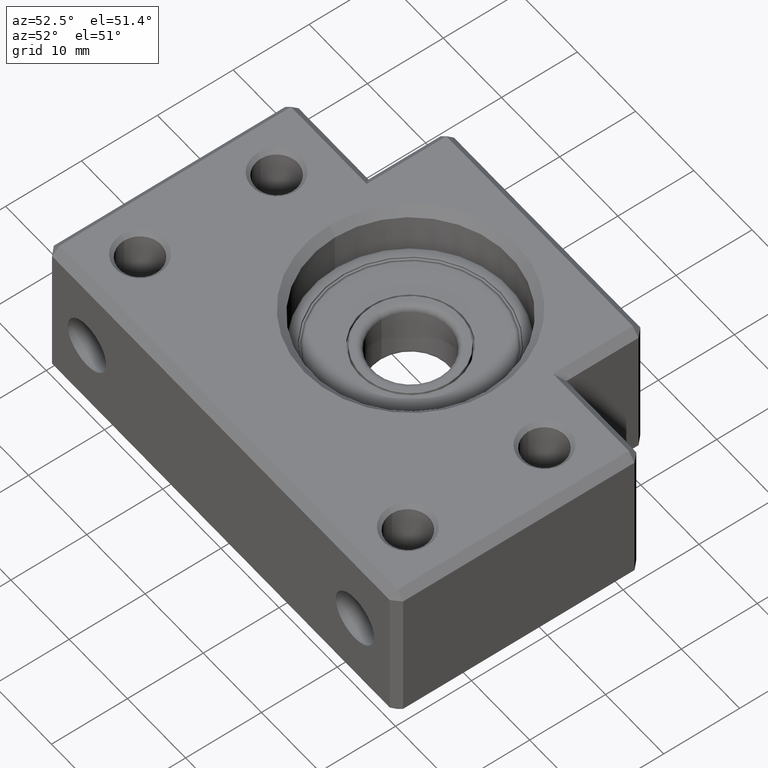
[diagram: clean part render]
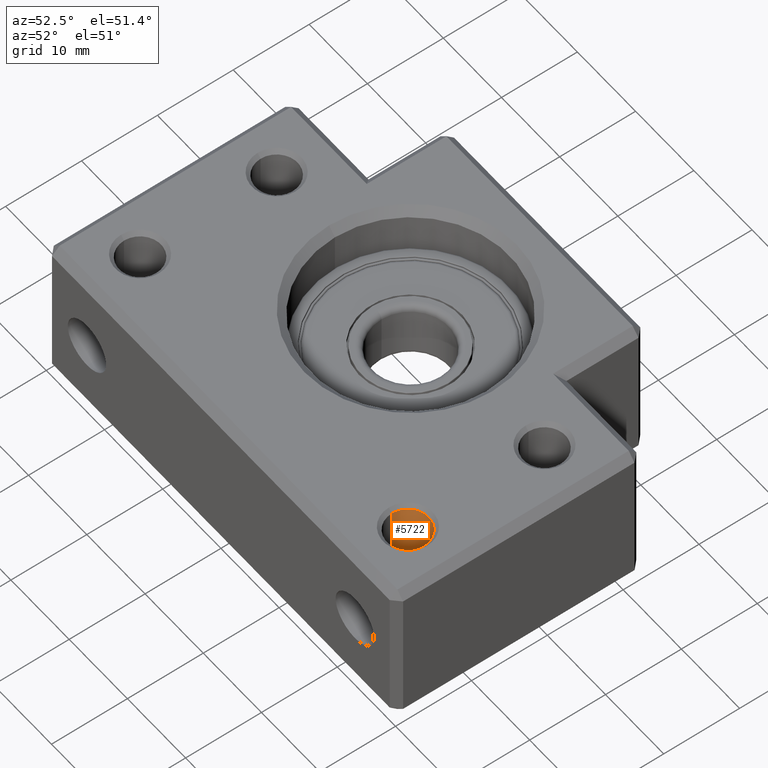
[diagram: same view with one face highlighted and labeled with its STEP entity id]
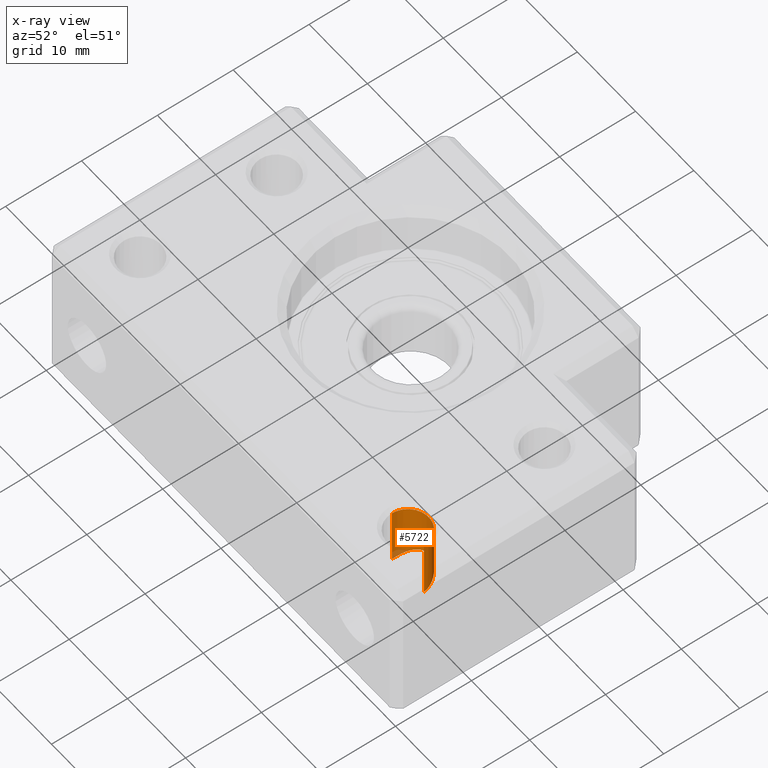
[diagram: x-ray of the same camera — body ghosted, the highlighted face saturated]
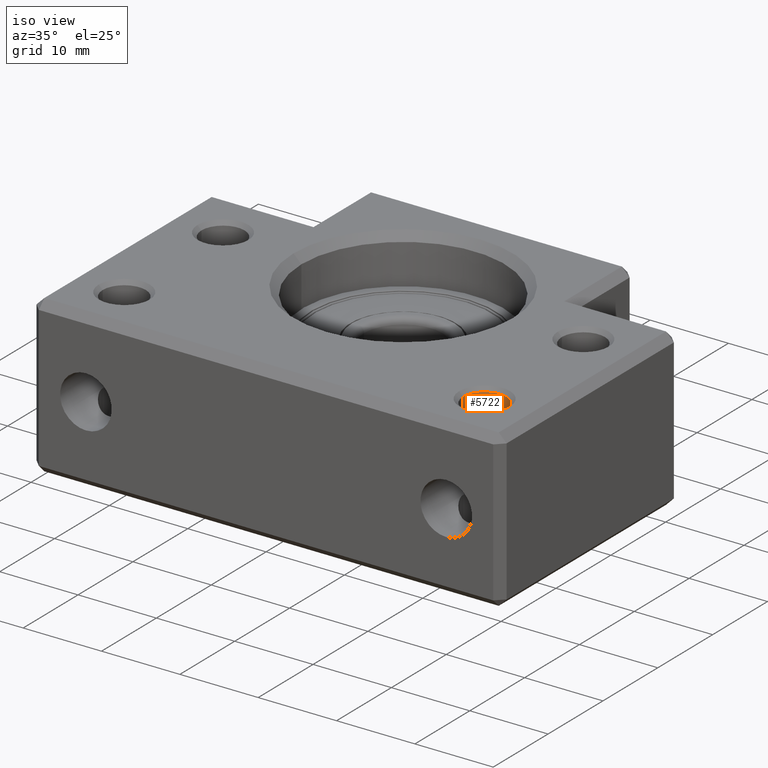
[diagram: same view with one face highlighted and labeled with its STEP entity id]
A machine part, auxiliary view. The second image highlights one B-rep face of the part: STEP entity #5722.
The next image is the same camera in x-ray: the body ghosted, the highlighted face saturated — about 4% of this face is hidden behind the body in this view.
A second angle (iso view) of the same face is appended — the face is thin or edge-on in the first view.
In plain terms, the highlighted cylindrical surface (edge-blend (fillet) strip) has radius 2.75 mm, axis along (-0, -0, 1).
Its self-contained STEP definition (entity closure, byte-faithful):
#779 = VERTEX_POINT ( 'NONE', #2360 ) ;
#780 = VERTEX_POINT ( 'NONE', #2359 ) ;
#2359 = CARTESIAN_POINT ( 'NONE',  ( 25.75000000000000400, 7.000000000000000900, 9.500000000000014200 ) ) ;
#2360 = CARTESIAN_POINT ( 'NONE',  ( 20.25000000000001800, 7.000000000000000900, 9.500000000000014200 ) ) ;
#2779 = CARTESIAN_POINT ( 'NONE',  ( 20.25000000000001800, 7.000000000000000900, 1.824143634695488200 ) ) ;
#2781 = B_SPLINE_CURVE_WITH_KNOTS ( 'NONE', 3,
 ( #2779, #2829, #2828, #2827, #2826, #2825, #2824, #2823, #2822, #2821, #2820, #2819, #2818, #2817, #2816, #2815, #2814, #2813 ),
 .UNSPECIFIED., .F., .F.,
 ( 4, 2, 2, 2, 2, 2, 2, 2, 4 ),
 ( 0.009199788583540854900, 0.009487680565759507000, 0.009775572547978160800, 0.01035135651241546700, 0.01092714047685277300, 0.01150292444129007900, 0.01265449237016469400, 0.01323027633460200300, 0.01380606029903931300 ),
 .UNSPECIFIED. ) ;
#2803 = CARTESIAN_POINT ( 'NONE',  ( 20.25000000000001800, 7.000000000000000900, 1.824143634695488200 ) ) ;
#2809 = CARTESIAN_POINT ( 'NONE',  ( 23.00000000000000400, 9.749999999999991100, 3.299999999999993600 ) ) ;
#2813 = CARTESIAN_POINT ( 'NONE',  ( 23.00000000000000400, 9.749999999999991100, 3.299999999999993600 ) ) ;
#2814 = CARTESIAN_POINT ( 'NONE',  ( 22.80838595597472500, 9.749999999999989300, 3.299999999999992300 ) ) ;
#2815 = CARTESIAN_POINT ( 'NONE',  ( 22.61421564508696100, 9.729430941887889300, 3.282803907253448300 ) ) ;
#2816 = CARTESIAN_POINT ( 'NONE',  ( 22.24240010694564500, 9.650408503811196000, 3.217401663457362600 ) ) ;
#2817 = CARTESIAN_POINT ( 'NONE',  ( 22.06534311916907500, 9.592878818233289800, 3.169957448176050200 ) ) ;
#2818 = CARTESIAN_POINT ( 'NONE',  ( 21.55791167329098500, 9.370505739642833700, 2.989855530037428500 ) ) ;
#2819 = CARTESIAN_POINT ( 'NONE',  ( 21.27520966331518800, 9.169225438651841000, 2.829227714854536800 ) ) ;
#2820 = CARTESIAN_POINT ( 'NONE',  ( 20.91483307837666300, 8.801128559062824800, 2.562115668929378500 ) ) ;
#2821 = CARTESIAN_POINT ( 'NONE',  ( 20.80826711659098600, 8.669511826136734100, 2.470470425103062700 ) ) ;
#2822 = CARTESIAN_POINT ( 'NONE',  ( 20.62062625615063300, 8.389080039777068600, 2.290305163205452300 ) ) ;
#2823 = CARTESIAN_POINT ( 'NONE',  ( 20.53917178795052200, 8.240029006053784900, 2.201324509957096600 ) ) ;
#2824 = CARTESIAN_POINT ( 'NONE',  ( 20.40141516974781800, 7.916899288393556900, 2.036875540463809000 ) ) ;
#2825 = CARTESIAN_POINT ( 'NONE',  ( 20.34705437376687700, 7.747444962964654500, 1.963725942618320900 ) ) ;
#2826 = CARTESIAN_POINT ( 'NONE',  ( 20.28985913357517000, 7.475615497262912100, 1.883141392062593500 ) ) ;
#2827 = CARTESIAN_POINT ( 'NONE',  ( 20.27488146535201700, 7.381170865410011200, 1.861194002310842400 ) ) ;
#2828 = CARTESIAN_POINT ( 'NONE',  ( 20.25504659022833900, 7.191815105511286000, 1.831814652278647100 ) ) ;
#2829 = CARTESIAN_POINT ( 'NONE',  ( 20.25000000000001800, 7.096337374762876800, 1.824143634695487300 ) ) ;
#2856 = CARTESIAN_POINT ( 'NONE',  ( 23.75539676340933300, 9.650981084525119200, 3.217874383892318500 ) ) ;
#2857 = CARTESIAN_POINT ( 'NONE',  ( 23.38507476860997500, 9.729476580456271500, 3.282842859970553000 ) ) ;
#3175 = LINE ( 'NONE', #3176, #3240 ) ;
#3176 = CARTESIAN_POINT ( 'NONE',  ( 25.75000000000000400, 7.000000000000000900, 10.00000000000000000 ) ) ;
#3229 = DIRECTION ( 'NONE',  ( -0.0000000000000000000, -0.0000000000000000000, 1.000000000000000000 ) ) ;
#3230 = VECTOR ( 'NONE', #3229, 1000.000000000000000 ) ;
#3231 = CARTESIAN_POINT ( 'NONE',  ( 20.25000000000001800, 7.000000000000000900, 10.00000000000000000 ) ) ;
#3232 = LINE ( 'NONE', #3231, #3230 ) ;
#3239 = DIRECTION ( 'NONE',  ( -0.0000000000000000000, -0.0000000000000000000, 1.000000000000000000 ) ) ;
#3240 = VECTOR ( 'NONE', #3239, 1000.000000000000000 ) ;
#3411 = CARTESIAN_POINT ( 'NONE',  ( 24.27046387614924300, 9.445849198185136700, 3.050870950992348600 ) ) ;
#3412 = CARTESIAN_POINT ( 'NONE',  ( 23.93380562072965700, 9.593118551774424000, 3.170157580137424900 ) ) ;
#3413 = CARTESIAN_POINT ( 'NONE',  ( 24.42594497241655900, 9.358014041380066300, 2.980558571871951400 ) ) ;
#3676 = CARTESIAN_POINT ( 'NONE',  ( 23.00000000000000400, 9.749999999999991100, 3.299999999999993600 ) ) ;
#3683 = CARTESIAN_POINT ( 'NONE',  ( 23.19097952733738000, 9.749999999999992900, 3.299999999999993600 ) ) ;
#3684 = B_SPLINE_CURVE_WITH_KNOTS ( 'NONE', 3,
 ( #3676, #3683, #2857, #2856, #3412, #3411, #3413, #6376, #6374, #6372, #6371, #6388, #6387, #6386, #6385, #6384, #6383, #6381 ),
 .UNSPECIFIED., .F., .F.,
 ( 4, 2, 2, 2, 2, 2, 2, 2, 4 ),
 ( 0.01380606029903931300, 0.01437993759460004500, 0.01495381489016077800, 0.01552769218572151000, 0.01610156948128224300, 0.01667544677684297500, 0.01724932407240370800, 0.01782320136796444400, 0.01839707866352518000 ),
 .UNSPECIFIED. ) ;
#3717 = DIRECTION ( 'NONE',  ( 1.000000000000000000, 0.0000000000000000000, 0.0000000000000000000 ) ) ;
#3718 = DIRECTION ( 'NONE',  ( -0.0000000000000000000, -0.0000000000000000000, 1.000000000000000000 ) ) ;
#3719 = CARTESIAN_POINT ( 'NONE',  ( 23.00000000000001100, 7.000000000000000900, 10.00000000000000000 ) ) ;
#3720 = AXIS2_PLACEMENT_3D ( 'NONE', #3719, #3718, #3717 ) ;
#3721 = CYLINDRICAL_SURFACE ( 'NONE', #3720, 2.749999999999992000 ) ;
#3727 = FACE_OUTER_BOUND ( 'NONE', #5716, .T. ) ;
#3728 = DIRECTION ( 'NONE',  ( 1.000000000000000000, 0.0000000000000000000, 0.0000000000000000000 ) ) ;
#3729 = DIRECTION ( 'NONE',  ( 0.0000000000000000000, 0.0000000000000000000, 1.000000000000000000 ) ) ;
#3730 = CARTESIAN_POINT ( 'NONE',  ( 23.00000000000001100, 7.000000000000000900, 9.500000000000014200 ) ) ;
#3731 = AXIS2_PLACEMENT_3D ( 'NONE', #3730, #3729, #3728 ) ;
#3732 = CIRCLE ( 'NONE', #3731, 2.749999999999992000 ) ;
#4079 = VERTEX_POINT ( 'NONE', #2803 ) ;
#4170 = EDGE_CURVE ( 'NONE', #4079, #4216, #2781, .T. ) ;
#4216 = VERTEX_POINT ( 'NONE', #2809 ) ;
#4903 = CARTESIAN_POINT ( 'NONE',  ( 25.75000000000000400, 7.000000000000000000, 1.824143634695466500 ) ) ;
#5446 = EDGE_CURVE ( 'NONE', #6389, #780, #3175, .T. ) ;
#5450 = EDGE_CURVE ( 'NONE', #4079, #779, #3232, .T. ) ;
#5712 = ORIENTED_EDGE ( 'NONE', *, *, #5718, .T. ) ;
#5715 = ORIENTED_EDGE ( 'NONE', *, *, #4170, .T. ) ;
#5716 = EDGE_LOOP ( 'NONE', ( #5717, #5715, #5712, #5738, #5739 ) ) ;
#5717 = ORIENTED_EDGE ( 'NONE', *, *, #5450, .F. ) ;
#5718 = EDGE_CURVE ( 'NONE', #4216, #6389, #3684, .T. ) ;
#5722 = ADVANCED_FACE ( 'NONE', ( #3727 ), #3721, .F. ) ;
#5738 = ORIENTED_EDGE ( 'NONE', *, *, #5446, .T. ) ;
#5739 = ORIENTED_EDGE ( 'NONE', *, *, #5740, .T. ) ;
#5740 = EDGE_CURVE ( 'NONE', #780, #779, #3732, .T. ) ;
#6371 = CARTESIAN_POINT ( 'NONE',  ( 25.19045973312459800, 8.671298978259878600, 2.471648693852998700 ) ) ;
#6372 = CARTESIAN_POINT ( 'NONE',  ( 25.08444300698220500, 8.801755646561774800, 2.562590444923881900 ) ) ;
#6374 = CARTESIAN_POINT ( 'NONE',  ( 24.84741675505135900, 9.044083509162414100, 2.738398030040132300 ) ) ;
#6376 = CARTESIAN_POINT ( 'NONE',  ( 24.71523089623039500, 9.156741119449041100, 2.824009815375314600 ) ) ;
#6381 = CARTESIAN_POINT ( 'NONE',  ( 25.75000000000000400, 7.000000000000000000, 1.824143634695466500 ) ) ;
#6383 = CARTESIAN_POINT ( 'NONE',  ( 25.75000000000001100, 7.194558985076389100, 1.824143634695464900 ) ) ;
#6384 = CARTESIAN_POINT ( 'NONE',  ( 25.72904522806063800, 7.385947309110544100, 1.856512996427387400 ) ) ;
#6385 = CARTESIAN_POINT ( 'NONE',  ( 25.65288154943169400, 7.747571178480726000, 1.963809524212871900 ) ) ;
#6386 = CARTESIAN_POINT ( 'NONE',  ( 25.59755137181334900, 7.919399813070021400, 2.038123752119966400 ) ) ;
#6387 = CARTESIAN_POINT ( 'NONE',  ( 25.46148846612494800, 8.238403680798983300, 2.200521776601823500 ) ) ;
#6388 = CARTESIAN_POINT ( 'NONE',  ( 25.37949267651753600, 8.389017177565550700, 2.290234859280789100 ) ) ;
#6389 = VERTEX_POINT ( 'NONE', #4903 ) ;